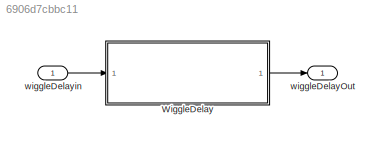
MODEL slx_6906d7cbbc11
KIND library
CONFIG AbsTol = auto
CONFIG EnableMultiTasking = off
CONFIG FixedStep = auto
CONFIG MaxStep = auto
CONFIG MinStep = auto
CONFIG RelTol = 1e-3
CONFIG SampleTimeConstraint = Unconstrained
CONFIG SolverName = VariableStepAuto
CONFIG StartTime = 0.0
CONFIG StopTime = 10.0
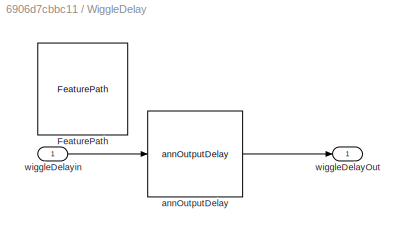
BLOCK [SubSystem] WiggleDelay
BLOCK [Reference] WiggleDelay/FeaturePath  REF=FeaturePath/FeaturePath
  SourceBlock = FeaturePath/FeaturePath
  SourceType = Bose Feature Path
BLOCK [Reference] WiggleDelay/annOutputDelay  REF=Delay/annOutputDelay
  SourceBlock = Delay/annOutputDelay
BLOCK [Outport] WiggleDelay/wiggleDelayOut
BLOCK [Inport] WiggleDelay/wiggleDelayin
  OutDataTypeStr = single
  VarSizeSig = No
BLOCK [Outport] wiggleDelayOut
BLOCK [Inport] wiggleDelayin
  OutDataTypeStr = single
  PortDimensions = [frame_size sysin_channel_count]
  SampleTime = 1/sample_rate_in_hertz * frame_size
  VarSizeSig = No
LINE WiggleDelay/annOutputDelay:1 -> WiggleDelay/wiggleDelayOut:1
LINE WiggleDelay/wiggleDelayin:1 -> WiggleDelay/annOutputDelay:1
LINE WiggleDelay:1 -> wiggleDelayOut:1
LINE wiggleDelayin:1 -> WiggleDelay:1
